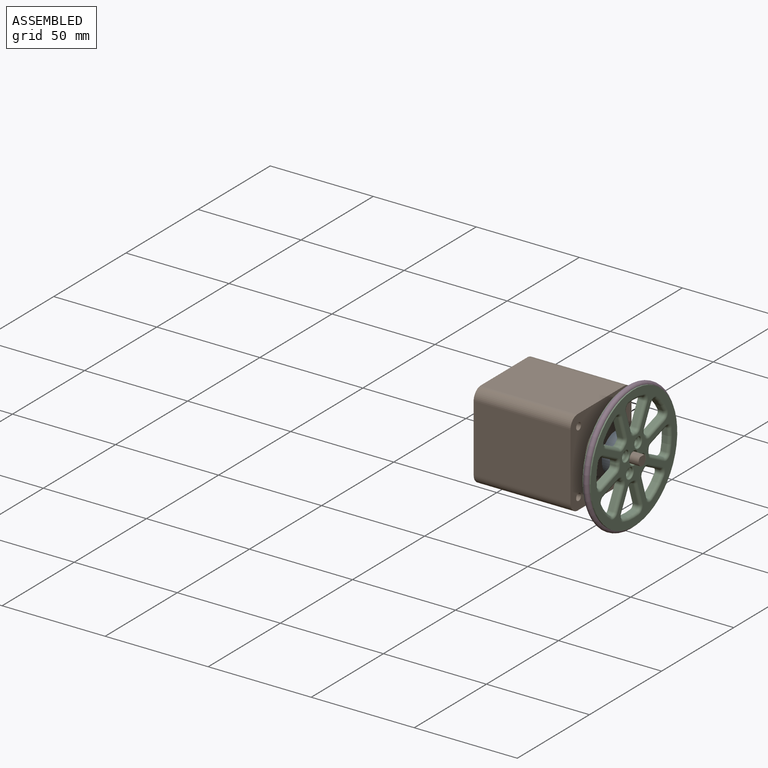
[diagram: assembled view]
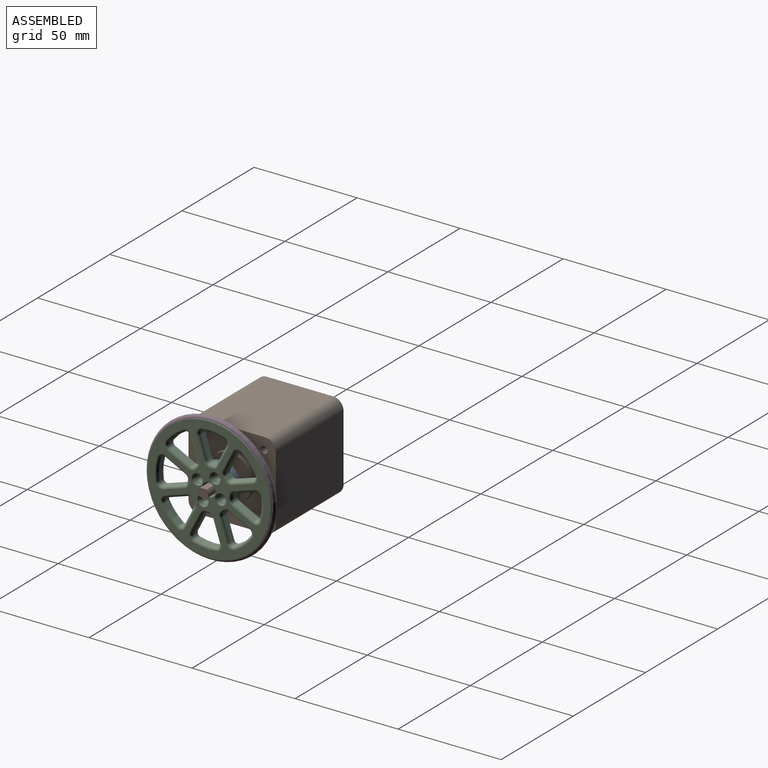
[diagram: assembled view, second angle]
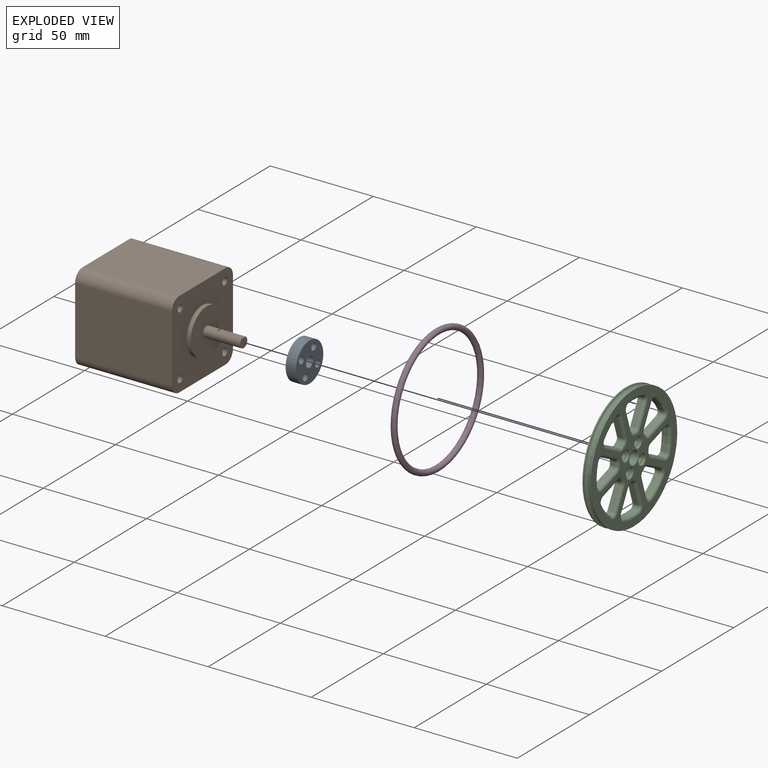
[diagram: exploded view]
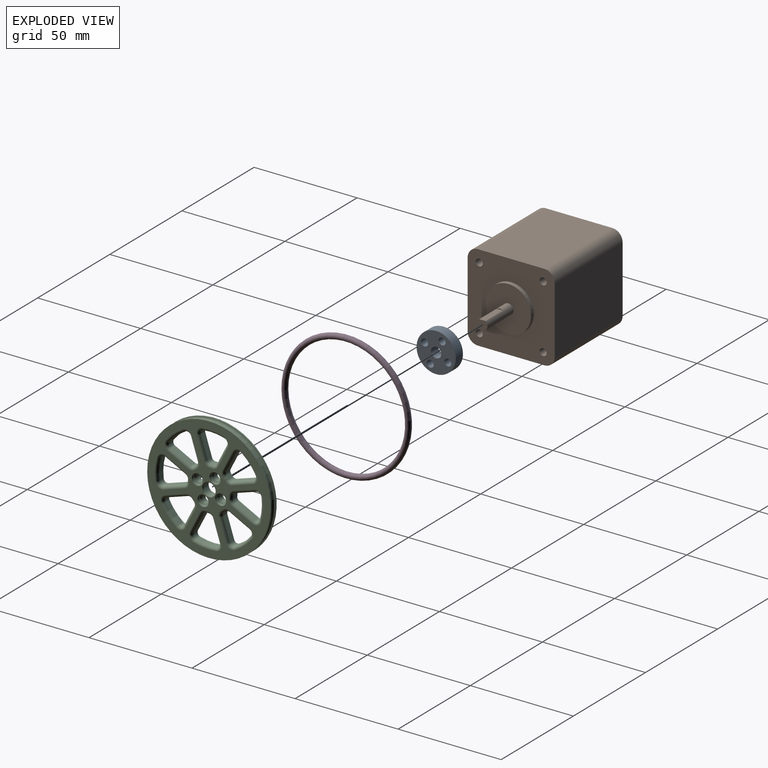
[diagram: exploded view, second angle]
ASSEMBLY  parts=4 mates=6
PART A: 8 faces, bbox 5x19x19 mm
  f0: cylinder r=2.5mm len=5mm, axis (-1,0,0), area 78.5mm2, adj f2,f3
  f1: cylinder r=9.5mm len=19mm, axis (-1,0,0), area 298.5mm2, adj f2,f3
  f2: plane 19x19mm, normal (1,0,0), area 227.6mm2, adj f0,f1,f4,f5,f6,f7
  f3: plane 19x19mm, normal (-1,0,0), area 227.6mm2, adj f0,f1,f4,f5,f6,f7
  f4: cylinder r=1.7mm len=5mm, axis (-1,0,0), area 53.4mm2, adj f2,f3
  f5: cylinder r=1.7mm len=5mm, axis (-1,0,0), area 53.4mm2, adj f2,f3
  f6: cylinder r=1.7mm len=5mm, axis (-1,0,0), area 53.4mm2, adj f2,f3
  f7: cylinder r=1.7mm len=5mm, axis (-1,0,0), area 53.4mm2, adj f2,f3
PART B: 24 faces, bbox 67x42.3x42.3 mm
  f0: plane 47x32.3mm, normal (0,0,-1), area 1518.1mm2, adj f4,f5,f20,f23
  f1: plane 47x32.3mm, normal (0,1,0), area 1518.1mm2, adj f4,f5,f20,f21
  f2: plane 47x32.3mm, normal (0,0,1), area 1518.1mm2, adj f4,f5,f21,f22
  f3: plane 47x32.3mm, normal (0,-1,0), area 1518.1mm2, adj f4,f5,f22,f23
  f4: plane 42.3x42.3mm, normal (1,0,0), area 1351.4mm2, adj f0,f1,f2,f3,f6,f13,f15,f17
  f5: plane 42.3x42.3mm, normal (-1,0,0), area 1767.8mm2, adj f0,f1,f2,f3,f20,f21,f22,f23
  f6: cylinder r=11mm len=22mm, axis (-1,0,0), area 138.2mm2, adj f4,f7
  f7: plane 22x22mm, normal (1,0,0), area 360.5mm2, adj f6,f8
  f8: cylinder r=2.5mm len=18mm, axis (-1,0,0), area 244.1mm2, adj f7,f9,f10,f11
  f9: plane 5x4.5mm, normal (1,0,0), area 18.6mm2, adj f8,f10
  f10: plane 12x3mm, normal (0,0,1), area 36mm2, adj f8,f9,f11
  f11: plane 3x0.5mm, normal (1,0,0), area 1mm2, adj f8,f10
  f12: cone r=0mm half-angle=59deg, axis (1,0,0), area 10.6mm2, adj f13
  f13: cylinder r=1.7mm len=4.5mm, axis (1,0,0), area 48.1mm2, adj f4,f12
  f14: cone r=0mm half-angle=59deg, axis (1,0,0), area 10.6mm2, adj f15
  f15: cylinder r=1.7mm len=4.5mm, axis (1,0,0), area 48.1mm2, adj f4,f14
  f16: cone r=0mm half-angle=59deg, axis (1,0,0), area 10.6mm2, adj f17
  f17: cylinder r=1.7mm len=4.5mm, axis (1,0,0), area 48.1mm2, adj f4,f16
  f18: cone r=0mm half-angle=59deg, axis (1,0,0), area 10.6mm2, adj f19
  f19: cylinder r=1.7mm len=4.5mm, axis (1,0,0), area 48.1mm2, adj f4,f18
  f20: cylinder r=5mm len=47mm, axis (1,0,0), area 369.1mm2, adj f0,f1,f4,f5
  f21: cylinder r=5mm len=47mm, axis (-1,0,0), area 369.1mm2, adj f1,f2,f4,f5
  f22: cylinder r=5mm len=47mm, axis (1,0,0), area 369.1mm2, adj f2,f3,f4,f5
  f23: cylinder r=5mm len=47mm, axis (-1,0,0), area 369.1mm2, adj f0,f3,f4,f5
PART C: 151 faces, bbox 4x67.1x67.1 mm
  f0: cylinder r=1.6mm len=3.2mm, axis (1,0,0), area 25.3mm2, adj f4,f80
  f1: cylinder r=1.6mm len=3.2mm, axis (1,0,0), area 25.3mm2, adj f4,f78
  f2: cylinder r=1.6mm len=3.2mm, axis (1,0,0), area 25.3mm2, adj f4,f76
  f3: cylinder r=1.6mm len=3.2mm, axis (1,0,0), area 25.3mm2, adj f4,f74
  f4: plane 60x60mm, normal (-1,0,0), area 1766.9mm2, adj f0,f1,f2,f3,f6,f9,f10,f11
  f5: plane 60x60mm, normal (1,0,0), area 1154.4mm2, adj f7,f82,f83,f84,f85,f86,f87,f88
  f6: cylinder r=3mm len=6mm, axis (-1,0,0), area 67.9mm2, adj f4,f150
  f7: cylinder r=30mm len=60mm, axis (-1,0,0), area 117mm2, adj f5,f8
  f8: torus R=30mm, axis (-1,0,0), area 793mm2, adj f7,f9
  f9: cylinder r=30mm len=60mm, axis (-1,0,0), area 117mm2, adj f4,f8
  f10: plane 7.6x7.6mm, normal (0,0.71,0.71), area 27.9mm2, adj f4,f70,f73,f85
  f11: cylinder r=11mm len=2.6mm, axis (1,0,0), area 2.9mm2, adj f4,f72,f73,f89
  f12: plane 10.74x2.6mm, normal (0,-1,0), area 27.9mm2, adj f4,f71,f72,f86
  f13: cylinder r=25mm len=9.46mm, axis (1,0,0), area 26.8mm2, adj f4,f70,f71,f82
  f14: cylinder r=25mm len=9.46mm, axis (1,0,0), area 26.8mm2, adj f4,f42,f45,f138
  f15: plane 7.6x7.6mm, normal (0,0.71,-0.71), area 27.9mm2, adj f4,f44,f45,f141
  f16: cylinder r=11mm len=2.6mm, axis (1,0,0), area 2.9mm2, adj f4,f43,f44,f145
  f17: plane 10.74x2.6mm, normal (0,0,1), area 27.9mm2, adj f4,f42,f43,f142
  f18: cylinder r=25mm len=9.46mm, axis (1,0,0), area 26.8mm2, adj f4,f50,f53,f125
  f19: plane 7.6x7.6mm, normal (0,-0.71,-0.71), area 27.9mm2, adj f4,f52,f53,f122
  f20: cylinder r=11mm len=2.6mm, axis (1,0,0), area 2.9mm2, adj f4,f51,f52,f126
  f21: plane 10.74x2.6mm, normal (0,1,0), area 27.9mm2, adj f4,f50,f51,f129
  f22: cylinder r=25mm len=9.46mm, axis (1,0,0), area 26.8mm2, adj f4,f46,f49,f133
  f23: plane 10.74x2.6mm, normal (0,0,-1), area 27.9mm2, adj f4,f48,f49,f130
  f24: cylinder r=11mm len=2.6mm, axis (1,0,0), area 2.9mm2, adj f4,f47,f48,f134
  f25: plane 7.6x7.6mm, normal (0,0.71,0.71), area 27.9mm2, adj f4,f46,f47,f137
  f26: cylinder r=25mm len=9.46mm, axis (1,0,0), area 26.8mm2, adj f4,f58,f61,f109
  f27: plane 7.6x7.6mm, normal (0,-0.71,0.71), area 27.9mm2, adj f4,f60,f61,f113
  f28: cylinder r=11mm len=2.6mm, axis (1,0,0), area 2.9mm2, adj f4,f59,f60,f110
  f29: plane 10.74x2.6mm, normal (0,0,-1), area 27.9mm2, adj f4,f58,f59,f106
  f30: cylinder r=25mm len=9.46mm, axis (1,0,0), area 26.8mm2, adj f4,f54,f57,f117
  f31: plane 10.74x2.6mm, normal (0,-1,0), area 27.9mm2, adj f4,f56,f57,f114
  f32: cylinder r=11mm len=2.6mm, axis (1,0,0), area 2.9mm2, adj f4,f55,f56,f118
  f33: plane 7.6x7.6mm, normal (0,0.71,-0.71), area 27.9mm2, adj f4,f54,f55,f121
  f34: cylinder r=25mm len=9.46mm, axis (1,0,0), area 26.8mm2, adj f4,f62,f65,f101
  f35: plane 10.74x2.6mm, normal (0,0,1), area 27.9mm2, adj f4,f64,f65,f105
  f36: cylinder r=11mm len=2.6mm, axis (1,0,0), area 2.9mm2, adj f4,f63,f64,f102
  f37: plane 7.6x7.6mm, normal (0,-0.71,-0.71), area 27.9mm2, adj f4,f62,f63,f98
  f38: cylinder r=25mm len=9.46mm, axis (1,0,0), area 26.8mm2, adj f4,f66,f69,f90
  f39: plane 10.74x2.6mm, normal (0,1,0), area 27.9mm2, adj f4,f66,f67,f93
  f40: cylinder r=11mm len=2.6mm, axis (1,0,0), area 2.9mm2, adj f4,f67,f68,f97
  f41: plane 7.6x7.6mm, normal (0,-0.71,0.71), area 27.9mm2, adj f4,f68,f69,f94
  f42: cylinder r=1.8mm len=2.6mm, axis (1,0,0), area 8.2mm2, adj f4,f14,f17,f140
  f43: cylinder r=1.8mm len=2.6mm, axis (1,0,0), area 5.7mm2, adj f4,f16,f17,f144
  f44: cylinder r=1.8mm len=2.6mm, axis (1,0,0), area 5.7mm2, adj f4,f15,f16,f143
  f45: cylinder r=1.8mm len=2.76mm, axis (1,0,0), area 8.2mm2, adj f4,f14,f15,f139
  f46: cylinder r=1.8mm len=2.76mm, axis (1,0,0), area 8.2mm2, adj f4,f22,f25,f135
  f47: cylinder r=1.8mm len=2.6mm, axis (1,0,0), area 5.7mm2, adj f4,f24,f25,f136
  f48: cylinder r=1.8mm len=2.6mm, axis (1,0,0), area 5.7mm2, adj f4,f23,f24,f132
  f49: cylinder r=1.8mm len=2.6mm, axis (1,0,0), area 8.2mm2, adj f4,f22,f23,f131
  f50: cylinder r=1.8mm len=2.6mm, axis (1,0,0), area 8.2mm2, adj f4,f18,f21,f127
  f51: cylinder r=1.8mm len=2.6mm, axis (1,0,0), area 5.7mm2, adj f4,f20,f21,f128
  f52: cylinder r=1.8mm len=2.6mm, axis (1,0,0), area 5.7mm2, adj f4,f19,f20,f124
  f53: cylinder r=1.8mm len=2.76mm, axis (1,0,0), area 8.2mm2, adj f4,f18,f19,f123
  f54: cylinder r=1.8mm len=2.76mm, axis (1,0,0), area 8.2mm2, adj f4,f30,f33,f119
  f55: cylinder r=1.8mm len=2.6mm, axis (1,0,0), area 5.7mm2, adj f4,f32,f33,f120
  f56: cylinder r=1.8mm len=2.6mm, axis (1,0,0), area 5.7mm2, adj f4,f31,f32,f116
  f57: cylinder r=1.8mm len=2.6mm, axis (1,0,0), area 8.2mm2, adj f4,f30,f31,f115
  f58: cylinder r=1.8mm len=2.6mm, axis (1,0,0), area 8.2mm2, adj f4,f26,f29,f107
  f59: cylinder r=1.8mm len=2.6mm, axis (1,0,0), area 5.7mm2, adj f4,f28,f29,f108
  f60: cylinder r=1.8mm len=2.6mm, axis (1,0,0), area 5.7mm2, adj f4,f27,f28,f112
  f61: cylinder r=1.8mm len=2.76mm, axis (1,0,0), area 8.2mm2, adj f4,f26,f27,f111
  f62: cylinder r=1.8mm len=2.76mm, axis (1,0,0), area 8.2mm2, adj f4,f34,f37,f99
  f63: cylinder r=1.8mm len=2.6mm, axis (1,0,0), area 5.7mm2, adj f4,f36,f37,f100
  f64: cylinder r=1.8mm len=2.6mm, axis (1,0,0), area 5.7mm2, adj f4,f35,f36,f104
  f65: cylinder r=1.8mm len=2.6mm, axis (1,0,0), area 8.2mm2, adj f4,f34,f35,f103
  f66: cylinder r=1.8mm len=2.6mm, axis (1,0,0), area 8.2mm2, adj f4,f38,f39,f91
  f67: cylinder r=1.8mm len=2.6mm, axis (1,0,0), area 5.7mm2, adj f4,f39,f40,f95
  f68: cylinder r=1.8mm len=2.6mm, axis (1,0,0), area 5.7mm2, adj f4,f40,f41,f96
  f69: cylinder r=1.8mm len=2.76mm, axis (1,0,0), area 8.2mm2, adj f4,f38,f41,f92
  f70: cylinder r=1.8mm len=2.76mm, axis (1,0,0), area 8.2mm2, adj f4,f10,f13,f83
  f71: cylinder r=1.8mm len=2.6mm, axis (1,0,0), area 8.2mm2, adj f4,f12,f13,f84
  f72: cylinder r=1.8mm len=2.6mm, axis (1,0,0), area 5.7mm2, adj f4,f11,f12,f88
  f73: cylinder r=1.8mm len=2.6mm, axis (1,0,0), area 5.7mm2, adj f4,f10,f11,f87
  f74: cone r=0mm half-angle=59deg, axis (1,0,0), area 11.7mm2, adj f3,f75
  f75: cylinder r=2.4mm len=4.8mm, axis (1,0,0), area 9mm2, adj f74,f149
  f76: cone r=0mm half-angle=59deg, axis (1,0,0), area 11.7mm2, adj f2,f77
  f77: cylinder r=2.4mm len=4.8mm, axis (1,0,0), area 9mm2, adj f76,f148
  f78: cone r=0mm half-angle=59deg, axis (1,0,0), area 11.7mm2, adj f1,f79
  f79: cylinder r=2.4mm len=4.8mm, axis (1,0,0), area 9mm2, adj f78,f147
  f80: cone r=0mm half-angle=59deg, axis (1,0,0), area 11.7mm2, adj f0,f81
  f81: cylinder r=2.4mm len=4.8mm, axis (1,0,0), area 9mm2, adj f80,f146
  f82: torus R=26.4mm, axis (1,0,0), area 23.1mm2, adj f5,f13,f83,f84
  f83: torus R=3.2mm, axis (1,0,0), area 8.9mm2, adj f5,f70,f82,f85
  f84: torus R=3.2mm, axis (1,0,0), area 8.9mm2, adj f5,f71,f82,f86
  f85: cylinder r=1.4mm len=8.59mm, axis (0,-0.71,0.71), area 23.6mm2, adj f5,f10,f83,f87
  f86: cylinder r=1.4mm len=10.74mm, axis (0,0,-1), area 23.6mm2, adj f5,f12,f84,f88
  f87: torus R=3.2mm, axis (1,0,0), area 6.2mm2, adj f5,f73,f85,f89
  f88: torus R=3.2mm, axis (1,0,0), area 6.2mm2, adj f5,f72,f86,f89
  f89: torus R=9.6mm, axis (1,0,0), area 2.3mm2, adj f5,f11,f87,f88
  f90: torus R=26.4mm, axis (1,0,0), area 23.1mm2, adj f5,f38,f91,f92
  f91: torus R=3.2mm, axis (1,0,0), area 8.9mm2, adj f5,f66,f90,f93
  f92: torus R=3.2mm, axis (1,0,0), area 8.9mm2, adj f5,f69,f90,f94
  f93: cylinder r=1.4mm len=10.74mm, axis (0,0,1), area 23.6mm2, adj f5,f39,f91,f95
  f94: cylinder r=1.4mm len=8.59mm, axis (0,-0.71,-0.71), area 23.6mm2, adj f5,f41,f92,f96
  f95: torus R=3.2mm, axis (1,0,0), area 6.2mm2, adj f5,f67,f93,f97
  f96: torus R=3.2mm, axis (1,0,0), area 6.2mm2, adj f5,f68,f94,f97
  f97: torus R=9.6mm, axis (1,0,0), area 2.3mm2, adj f5,f40,f95,f96
  f98: cylinder r=1.4mm len=8.59mm, axis (0,0.71,-0.71), area 23.6mm2, adj f5,f37,f99,f100
  f99: torus R=3.2mm, axis (1,0,0), area 8.9mm2, adj f5,f62,f98,f101
  f100: torus R=3.2mm, axis (1,0,0), area 6.2mm2, adj f5,f63,f98,f102
  f101: torus R=26.4mm, axis (1,0,0), area 23.1mm2, adj f5,f34,f99,f103
  f102: torus R=9.6mm, axis (1,0,0), area 2.3mm2, adj f5,f36,f100,f104
  f103: torus R=3.2mm, axis (1,0,0), area 8.9mm2, adj f5,f65,f101,f105
  f104: torus R=3.2mm, axis (1,0,0), area 6.2mm2, adj f5,f64,f102,f105
  f105: cylinder r=1.4mm len=10.74mm, axis (0,-1,0), area 23.6mm2, adj f5,f35,f103,f104
  f106: cylinder r=1.4mm len=10.74mm, axis (0,1,0), area 23.6mm2, adj f5,f29,f107,f108
  f107: torus R=3.2mm, axis (1,0,0), area 8.9mm2, adj f5,f58,f106,f109
  f108: torus R=3.2mm, axis (1,0,0), area 6.2mm2, adj f5,f59,f106,f110
  f109: torus R=26.4mm, axis (1,0,0), area 23.1mm2, adj f5,f26,f107,f111
  f110: torus R=9.6mm, axis (1,0,0), area 2.3mm2, adj f5,f28,f108,f112
  f111: torus R=3.2mm, axis (1,0,0), area 8.9mm2, adj f5,f61,f109,f113
  f112: torus R=3.2mm, axis (1,0,0), area 6.2mm2, adj f5,f60,f110,f113
  f113: cylinder r=1.4mm len=8.59mm, axis (0,-0.71,-0.71), area 23.6mm2, adj f5,f27,f111,f112
  f114: cylinder r=1.4mm len=10.74mm, axis (0,0,-1), area 23.6mm2, adj f5,f31,f115,f116
  f115: torus R=3.2mm, axis (1,0,0), area 8.9mm2, adj f5,f57,f114,f117
  f116: torus R=3.2mm, axis (1,0,0), area 6.2mm2, adj f5,f56,f114,f118
  f117: torus R=26.4mm, axis (1,0,0), area 23.1mm2, adj f5,f30,f115,f119
  f118: torus R=9.6mm, axis (1,0,0), area 2.3mm2, adj f5,f32,f116,f120
  f119: torus R=3.2mm, axis (1,0,0), area 8.9mm2, adj f5,f54,f117,f121
  f120: torus R=3.2mm, axis (1,0,0), area 6.2mm2, adj f5,f55,f118,f121
  f121: cylinder r=1.4mm len=8.59mm, axis (0,0.71,0.71), area 23.6mm2, adj f5,f33,f119,f120
  f122: cylinder r=1.4mm len=8.59mm, axis (0,0.71,-0.71), area 23.6mm2, adj f5,f19,f123,f124
  f123: torus R=3.2mm, axis (1,0,0), area 8.9mm2, adj f5,f53,f122,f125
  f124: torus R=3.2mm, axis (1,0,0), area 6.2mm2, adj f5,f52,f122,f126
  f125: torus R=26.4mm, axis (1,0,0), area 23.1mm2, adj f5,f18,f123,f127
  f126: torus R=9.6mm, axis (1,0,0), area 2.3mm2, adj f5,f20,f124,f128
  f127: torus R=3.2mm, axis (1,0,0), area 8.9mm2, adj f5,f50,f125,f129
  f128: torus R=3.2mm, axis (1,0,0), area 6.2mm2, adj f5,f51,f126,f129
  f129: cylinder r=1.4mm len=10.74mm, axis (0,0,1), area 23.6mm2, adj f5,f21,f127,f128
  f130: cylinder r=1.4mm len=10.74mm, axis (0,1,0), area 23.6mm2, adj f5,f23,f131,f132
  f131: torus R=3.2mm, axis (1,0,0), area 8.9mm2, adj f5,f49,f130,f133
  f132: torus R=3.2mm, axis (1,0,0), area 6.2mm2, adj f5,f48,f130,f134
  f133: torus R=26.4mm, axis (1,0,0), area 23.1mm2, adj f5,f22,f131,f135
  f134: torus R=9.6mm, axis (1,0,0), area 2.3mm2, adj f5,f24,f132,f136
  f135: torus R=3.2mm, axis (1,0,0), area 8.9mm2, adj f5,f46,f133,f137
  f136: torus R=3.2mm, axis (1,0,0), area 6.2mm2, adj f5,f47,f134,f137
  f137: cylinder r=1.4mm len=8.59mm, axis (0,-0.71,0.71), area 23.6mm2, adj f5,f25,f135,f136
  f138: torus R=26.4mm, axis (1,0,0), area 23.1mm2, adj f5,f14,f139,f140
  f139: torus R=3.2mm, axis (1,0,0), area 8.9mm2, adj f5,f45,f138,f141
  f140: torus R=3.2mm, axis (1,0,0), area 8.9mm2, adj f5,f42,f138,f142
  f141: cylinder r=1.4mm len=8.59mm, axis (0,0.71,0.71), area 23.6mm2, adj f5,f15,f139,f143
  f142: cylinder r=1.4mm len=10.74mm, axis (0,-1,0), area 23.6mm2, adj f5,f17,f140,f144
  f143: torus R=3.2mm, axis (1,0,0), area 6.2mm2, adj f5,f44,f141,f145
  f144: torus R=3.2mm, axis (1,0,0), area 6.2mm2, adj f5,f43,f142,f145
  f145: torus R=9.6mm, axis (1,0,0), area 2.3mm2, adj f5,f16,f143,f144
  f146: torus R=2.8mm, axis (1,0,0), area 10mm2, adj f5,f81
  f147: torus R=2.8mm, axis (1,0,0), area 10mm2, adj f5,f79
  f148: torus R=2.8mm, axis (1,0,0), area 10mm2, adj f5,f77
  f149: torus R=2.8mm, axis (1,0,0), area 10mm2, adj f5,f75
  f150: torus R=3.4mm, axis (1,0,0), area 12.4mm2, adj f5,f6
PART D: 1 faces, bbox 2.8x67.9x67.9 mm
  f0: torus R=30mm, axis (-1,0,0), area 1633.8mm2
PLACE A rot(axis=(-1,0,0),27deg) t=(7.66,-0.1,0.12)mm
PLACE B t=(-46.34,-0.1,0.12)mm fixed
PLACE C rot(axis=(-1,0,0),27deg) t=(12.66,-0.1,0.12)mm
PLACE D rot(axis=(-1,0,0),27deg) t=(12.66,-0.1,0.12)mm
MATE planar A.f1 <-> B.f6  axis (-1,0,0) through (7.66,-0.1,0.12)mm
MATE cylindrical A.f0 <-> B.f8  axis (-1,0,0) through (12.66,-0.1,0.12)mm
MATE fastened D.f0 <-> C.f6  axis (-1,0,0) through (14.66,-0.1,0.12)mm
MATE cylindrical A.f4 <-> C.f0  axis (-1,0,0) through (10.16,5.55,-2.77)mm
MATE planar C.f4 <-> A.f1  axis (-1,0,0) through (12.66,-19.27,12.71)mm
MATE cylindrical A.f6 <-> C.f2  axis (-1,0,0) through (10.16,-5.76,3.01)mm
